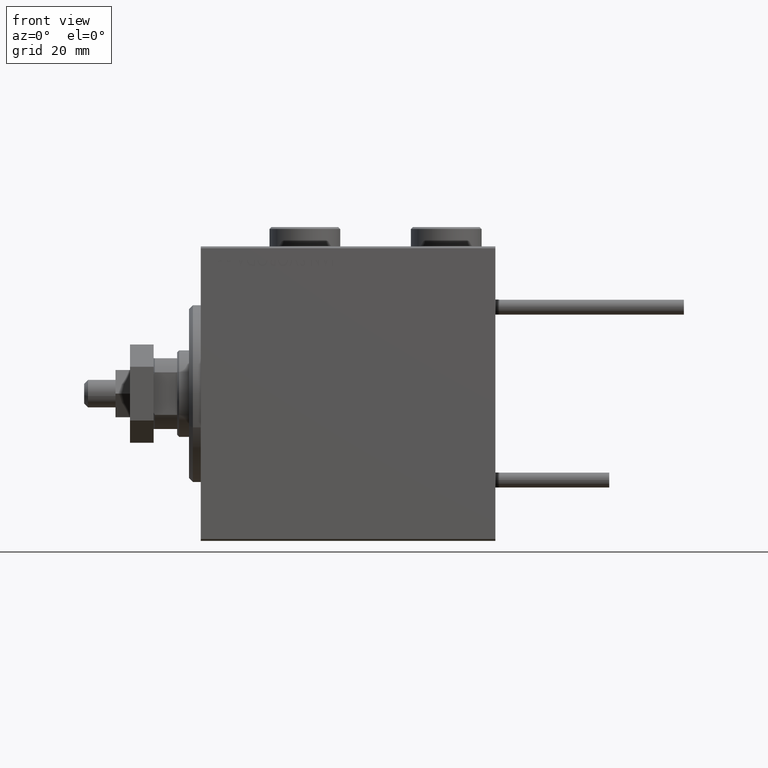
[diagram: clean part render]
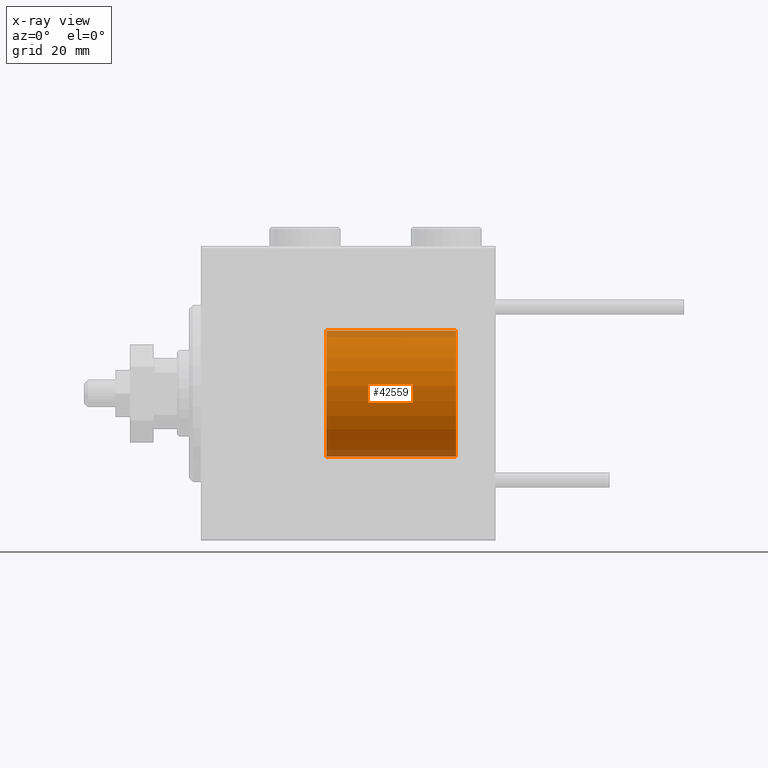
[diagram: x-ray — body ghosted, one internal face saturated and labeled with its STEP entity id]
A machine part, front view, then the same camera in x-ray: the body is ghosted and one INTERNAL B-rep face — a face not visible from any outside direction — is saturated and labeled: STEP entity #42559.
In plain terms, the highlighted cylindrical surface (partial cylindrical patch) has radius 16 mm, axis along (1, -0, -0).
Its self-contained STEP definition (entity closure, byte-faithful):
#1882 = EDGE_LOOP ( 'NONE', ( #26174, #30347, #12607, #42126 ) ) ;
#1902 = EDGE_CURVE ( 'NONE', #48789, #51477, #13684, .T. ) ;
#2434 = CARTESIAN_POINT ( 'NONE',  ( 0.000000000000000000, 0.000000000000000000, 0.000000000000000000 ) ) ;
#2867 = DIRECTION ( 'NONE',  ( -0.000000000000000000, -0.000000000000000000, -1.000000000000000000 ) ) ;
#5368 = FACE_OUTER_BOUND ( 'NONE', #1882, .T. ) ;
#5814 = DIRECTION ( 'NONE',  ( 0.000000000000000000, 0.000000000000000000, 1.000000000000000000 ) ) ;
#9761 = CARTESIAN_POINT ( 'NONE',  ( -16.00000000000000000, 0.000000000000000000, 33.00000000000000000 ) ) ;
#11762 = AXIS2_PLACEMENT_3D ( 'NONE', #27471, #27978, #20425 ) ;
#12607 = ORIENTED_EDGE ( 'NONE', *, *, #1902, .T. ) ;
#13183 = DIRECTION ( 'NONE',  ( -1.000000000000000000, 0.000000000000000000, 0.000000000000000000 ) ) ;
#13684 = LINE ( 'NONE', #9761, #23096 ) ;
#17102 = CARTESIAN_POINT ( 'NONE',  ( 0.000000000000000000, 0.000000000000000000, 33.00000000000000000 ) ) ;
#18121 = CARTESIAN_POINT ( 'NONE',  ( 16.00000000000000000, 1.959434878635765131E-15, 0.000000000000000000 ) ) ;
#18322 = EDGE_CURVE ( 'NONE', #50830, #46693, #46883, .T. ) ;
#20425 = DIRECTION ( 'NONE',  ( 1.000000000000000000, 0.000000000000000000, 0.000000000000000000 ) ) ;
#21276 = CYLINDRICAL_SURFACE ( 'NONE', #28945, 16.00000000000000000 ) ;
#22766 = VECTOR ( 'NONE', #2867, 1000.000000000000000 ) ;
#23096 = VECTOR ( 'NONE', #25666, 1000.000000000000000 ) ;
#23451 = AXIS2_PLACEMENT_3D ( 'NONE', #2434, #5814, #30043 ) ;
#24201 = EDGE_CURVE ( 'NONE', #51477, #46693, #50073, .T. ) ;
#24543 = EDGE_CURVE ( 'NONE', #48789, #50830, #34258, .T. ) ;
#25666 = DIRECTION ( 'NONE',  ( -0.000000000000000000, -0.000000000000000000, -1.000000000000000000 ) ) ;
#26174 = ORIENTED_EDGE ( 'NONE', *, *, #18322, .F. ) ;
#27471 = CARTESIAN_POINT ( 'NONE',  ( 0.000000000000000000, 0.000000000000000000, 33.00000000000000000 ) ) ;
#27978 = DIRECTION ( 'NONE',  ( 0.000000000000000000, 0.000000000000000000, 1.000000000000000000 ) ) ;
#28945 = AXIS2_PLACEMENT_3D ( 'NONE', #17102, #40561, #13183 ) ;
#30043 = DIRECTION ( 'NONE',  ( 1.000000000000000000, 0.000000000000000000, 0.000000000000000000 ) ) ;
#30347 = ORIENTED_EDGE ( 'NONE', *, *, #24543, .F. ) ;
#34258 = CIRCLE ( 'NONE', #11762, 16.00000000000000000 ) ;
#34490 = CARTESIAN_POINT ( 'NONE',  ( -16.00000000000000000, 0.000000000000000000, 0.000000000000000000 ) ) ;
#40561 = DIRECTION ( 'NONE',  ( -0.000000000000000000, -0.000000000000000000, -1.000000000000000000 ) ) ;
#41983 = CARTESIAN_POINT ( 'NONE',  ( 16.00000000000000000, 1.959434878635765131E-15, 33.00000000000000000 ) ) ;
#42126 = ORIENTED_EDGE ( 'NONE', *, *, #24201, .T. ) ;
#42559 = ADVANCED_FACE ( 'NONE', ( #5368 ), #21276, .T. ) ;
#44733 = CARTESIAN_POINT ( 'NONE',  ( -16.00000000000000000, 0.000000000000000000, 33.00000000000000000 ) ) ;
#46124 = CARTESIAN_POINT ( 'NONE',  ( 16.00000000000000000, 1.959434878635765131E-15, 33.00000000000000000 ) ) ;
#46693 = VERTEX_POINT ( 'NONE', #18121 ) ;
#46883 = LINE ( 'NONE', #46124, #22766 ) ;
#48789 = VERTEX_POINT ( 'NONE', #44733 ) ;
#50073 = CIRCLE ( 'NONE', #23451, 16.00000000000000000 ) ;
#50830 = VERTEX_POINT ( 'NONE', #41983 ) ;
#51477 = VERTEX_POINT ( 'NONE', #34490 ) ;